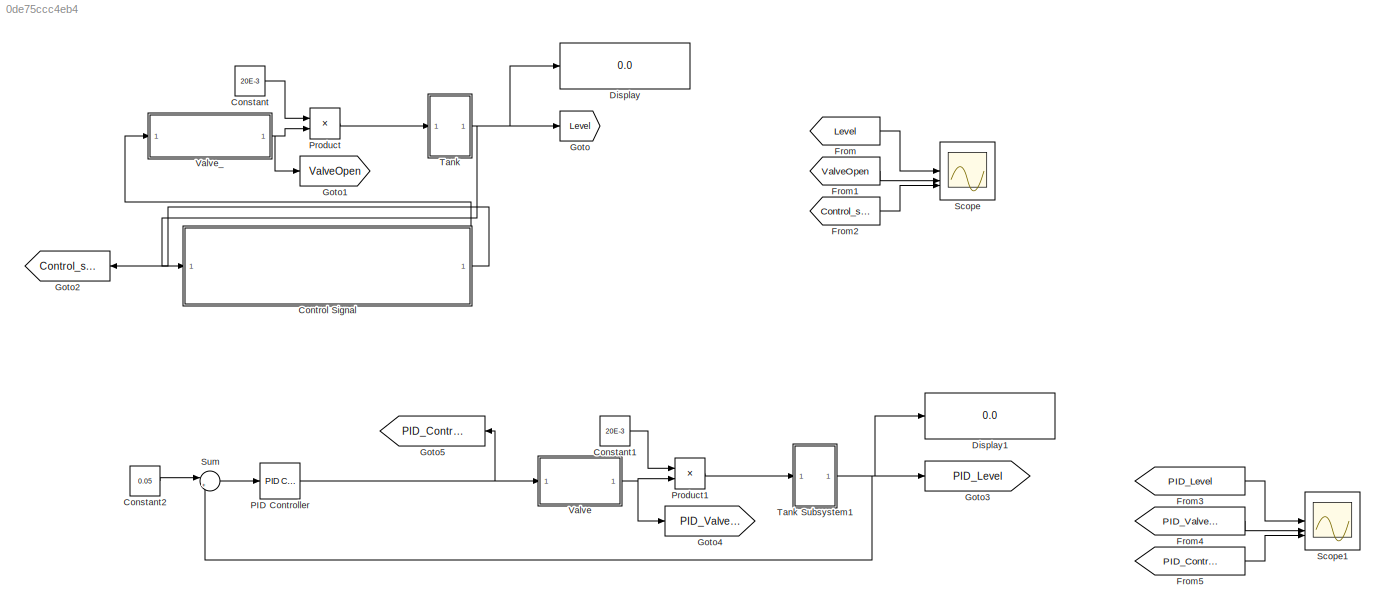
MODEL slx_0de75ccc4eb4
KIND model
CONFIG AbsTol = auto
CONFIG EnableMultiTasking = off
CONFIG FixedStep = auto
CONFIG MaxStep = auto
CONFIG MinStep = auto
CONFIG RelTol = 1e-3
CONFIG SampleTimeConstraint = Unconstrained
CONFIG SolverName = VariableStepAuto
CONFIG StartTime = 0.0
CONFIG StopTime = 100.0
BLOCK [Constant] Constant
  Value = 20E-3
BLOCK [Constant] Constant1
  Value = 20E-3
BLOCK [Constant] Constant2
  Value = 0.05
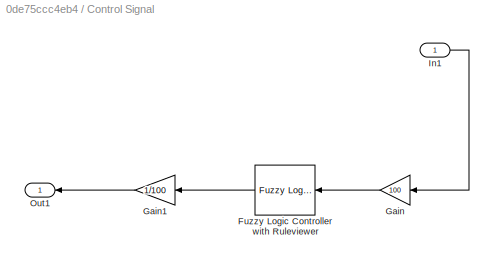
BLOCK [SubSystem] Control Signal
BLOCK [Reference] Control Signal/Fuzzy Logic Controller with Ruleviewer  REF=fuzblock/Fuzzy Logic   (lib defined in mdl_858b3b3e7478)
Controller 
with Ruleviewer
  SourceBlock = fuzblock/Fuzzy Logic \nController \nwith Ruleviewer
  SourceType = Fuzzy Inference System
BLOCK [Gain] Control Signal/Gain
  Gain = 100
BLOCK [Gain] Control Signal/Gain1
  Gain = 1/100
BLOCK [Inport] Control Signal/In1
BLOCK [Outport] Control Signal/Out1
BLOCK [Display] Display
  Decimation = 3
BLOCK [Display] Display1
  Decimation = 3
BLOCK [From] From
  GotoTag = Level
  IconDisplay = Tag and signal name
BLOCK [From] From1
  GotoTag = ValveOpen
BLOCK [From] From2
  GotoTag = Control_signal
BLOCK [From] From3
  GotoTag = PID_Level
  IconDisplay = Tag and signal name
BLOCK [From] From4
  GotoTag = PID_ValveOpen
BLOCK [From] From5
  GotoTag = PID_Control_signal
BLOCK [Goto] Goto
  GotoTag = Level
BLOCK [Goto] Goto1
  GotoTag = ValveOpen
BLOCK [Goto] Goto2
  GotoTag = Control_signal
BLOCK [Goto] Goto3
  GotoTag = PID_Level
BLOCK [Goto] Goto4
  GotoTag = PID_ValveOpen
BLOCK [Goto] Goto5
  GotoTag = PID_Control_signal
BLOCK [Reference] PID Controller  REF=slpidlib/PID Controller
  LibrarySourceBlock = simulink/Continuous/PID Controller
  SourceBlock = slpidlib/PID Controller
  SourceType = PID 1dof
BLOCK [Product] Product
BLOCK [Product] Product1
BLOCK [Scope] Scope
  Floating = off
  NumInputPorts = 3
  ScopeSpecificationString = Simulink.scopes.TimeScopeBlockCfg('CurrentConfiguration', extmgr.ConfigurationSet(extmgr.Configuration('Core','General UI',true,'FigureColor',[1 1 1]),extmgr.Configuration('Core','Source UI',true),extmgr.Configuration('Sources','WiredSimulink',true,'DataLoggingVariableName','ScopeData1'),extmgr.Configuration('Visuals','Time Domain',true,'SerializedDisplays',{struct('MinYLimReal','-0.19749','MaxYLi...<+1545ch>
BLOCK [Scope] Scope1
  Floating = off
  NumInputPorts = 3
  ScopeSpecificationString = Simulink.scopes.TimeScopeBlockCfg('CurrentConfiguration', extmgr.ConfigurationSet(extmgr.Configuration('Core','General UI',true,'FigureColor',[1 1 1]),extmgr.Configuration('Core','Source UI',true),extmgr.Configuration('Sources','WiredSimulink',true,'DataLoggingVariableName','ScopeData1'),extmgr.Configuration('Visuals','Time Domain',true,'SerializedDisplays',{struct('MinYLimReal','-0.08613','MaxYLi...<+1646ch>
BLOCK [Sum] Sum
  Inputs = |+-
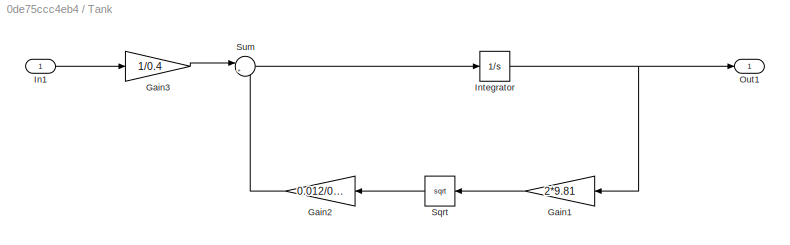
BLOCK [SubSystem] Tank
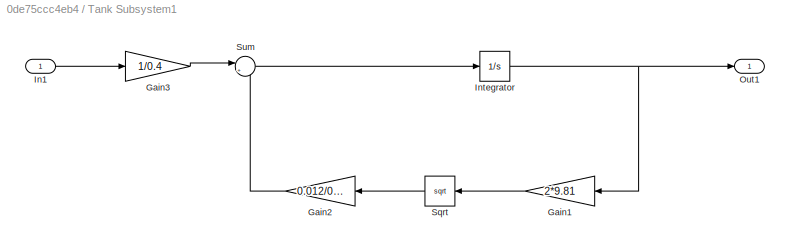
BLOCK [SubSystem] Tank Subsystem1
BLOCK [Gain] Tank Subsystem1/Gain1
  Gain = 2*9.81
BLOCK [Gain] Tank Subsystem1/Gain2
  Gain = 0.012/0.4
BLOCK [Gain] Tank Subsystem1/Gain3
  Gain = 1/0.4
BLOCK [Inport] Tank Subsystem1/In1
BLOCK [Integrator] Tank Subsystem1/Integrator
BLOCK [Outport] Tank Subsystem1/Out1
BLOCK [Sqrt] Tank Subsystem1/Sqrt
BLOCK [Sum] Tank Subsystem1/Sum
  Inputs = |+-
BLOCK [Gain] Tank/Gain1
  Gain = 2*9.81
BLOCK [Gain] Tank/Gain2
  Gain = 0.012/0.4
BLOCK [Gain] Tank/Gain3
  Gain = 1/0.4
BLOCK [Inport] Tank/In1
BLOCK [Integrator] Tank/Integrator
BLOCK [Outport] Tank/Out1
BLOCK [Sqrt] Tank/Sqrt
BLOCK [Sum] Tank/Sum
  Inputs = |+-
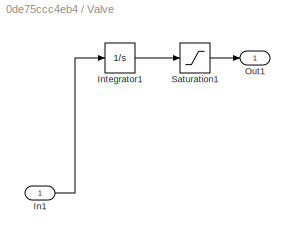
BLOCK [SubSystem] Valve
BLOCK [Inport] Valve/In1
BLOCK [Integrator] Valve/Integrator1
BLOCK [Outport] Valve/Out1
BLOCK [Saturate] Valve/Saturation1
  LowerLimit = 0
  UpperLimit = 1
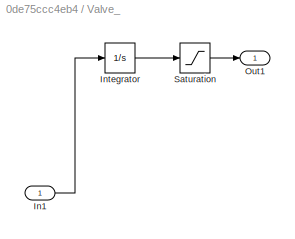
BLOCK [SubSystem] Valve_
BLOCK [Inport] Valve_/In1
BLOCK [Integrator] Valve_/Integrator
BLOCK [Outport] Valve_/Out1
BLOCK [Saturate] Valve_/Saturation
  LowerLimit = 0
  UpperLimit = 1
LINE Constant1:1 -> Product1:1
LINE Constant2:1 -> Sum:1
LINE Constant:1 -> Product:1
LINE Control Signal/Fuzzy Logic Controller with Ruleviewer:1 -> Control Signal/Gain1:1
LINE Control Signal/Gain1:1 -> Control Signal/Out1:1
LINE Control Signal/Gain:1 -> Control Signal/Fuzzy Logic Controller with Ruleviewer:1
LINE Control Signal/In1:1 -> Control Signal/Gain:1
NET Control Signal:1 -> Goto2:1, Valve_:1
LINE From1:1 -> Scope:2
LINE From2:1 -> Scope:3
LINE From3:1 -> Scope1:1
LINE From4:1 -> Scope1:2
LINE From5:1 -> Scope1:3
LINE From:1 -> Scope:1
NET PID Controller:1 -> Goto5:1, Valve:1
LINE Product1:1 -> Tank Subsystem1:1
LINE Product:1 -> Tank:1
LINE Sum:1 -> PID Controller:1
LINE Tank Subsystem1/Gain1:1 -> Tank Subsystem1/Sqrt:1
LINE Tank Subsystem1/Gain2:1 -> Tank Subsystem1/Sum:2
LINE Tank Subsystem1/Gain3:1 -> Tank Subsystem1/Sum:1
LINE Tank Subsystem1/In1:1 -> Tank Subsystem1/Gain3:1
NET Tank Subsystem1/Integrator:1 -> Tank Subsystem1/Gain1:1, Tank Subsystem1/Out1:1
LINE Tank Subsystem1/Sqrt:1 -> Tank Subsystem1/Gain2:1
LINE Tank Subsystem1/Sum:1 -> Tank Subsystem1/Integrator:1
NET Tank Subsystem1:1 -> Display1:1, Goto3:1, Sum:2
LINE Tank/Gain1:1 -> Tank/Sqrt:1
LINE Tank/Gain2:1 -> Tank/Sum:2
LINE Tank/Gain3:1 -> Tank/Sum:1
LINE Tank/In1:1 -> Tank/Gain3:1
NET Tank/Integrator:1 -> Tank/Gain1:1, Tank/Out1:1
LINE Tank/Sqrt:1 -> Tank/Gain2:1
LINE Tank/Sum:1 -> Tank/Integrator:1
NET Tank:1 -> Control Signal:1, Display:1, Goto:1
LINE Valve/In1:1 -> Valve/Integrator1:1
LINE Valve/Integrator1:1 -> Valve/Saturation1:1
LINE Valve/Saturation1:1 -> Valve/Out1:1
NET Valve:1 -> Goto4:1, Product1:2
LINE Valve_/In1:1 -> Valve_/Integrator:1
LINE Valve_/Integrator:1 -> Valve_/Saturation:1
LINE Valve_/Saturation:1 -> Valve_/Out1:1
NET Valve_:1 -> Goto1:1, Product:2
note: NET lines group one-source signal fan-out (src -> all destinations, sorted); 1:1 wires keep LINE
